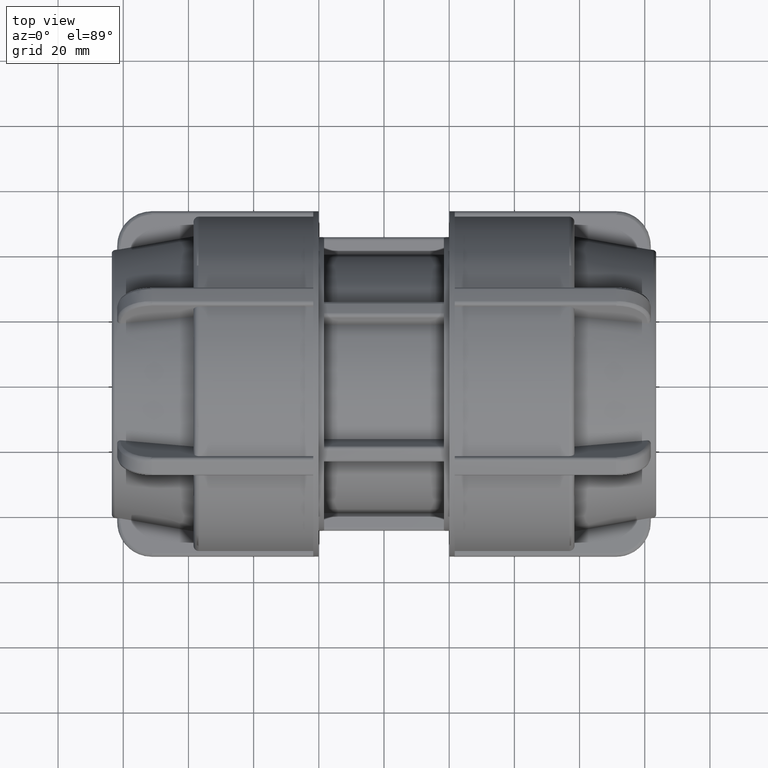
[diagram: clean part render]
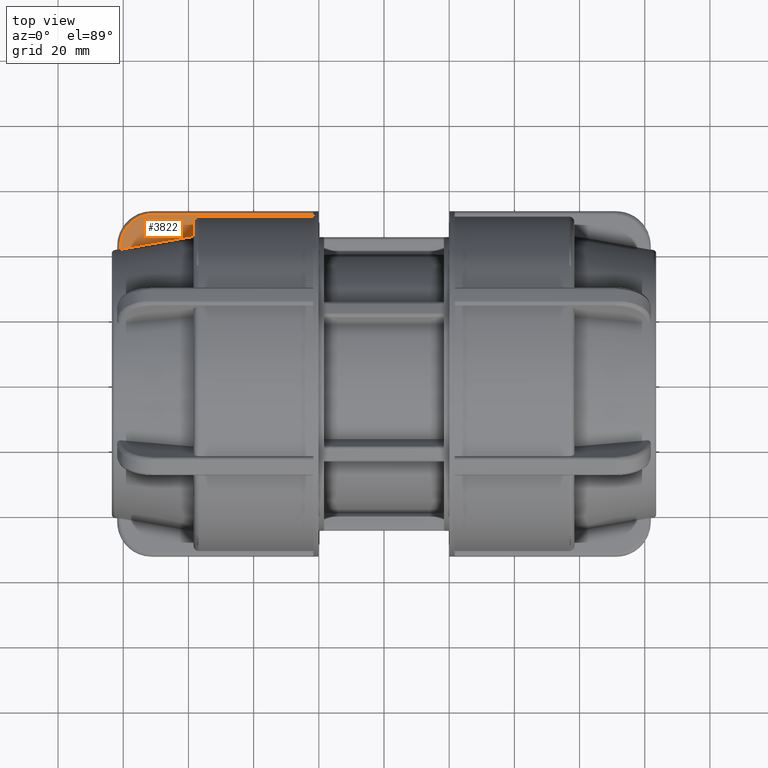
[diagram: same view with one face highlighted and labeled with its STEP entity id]
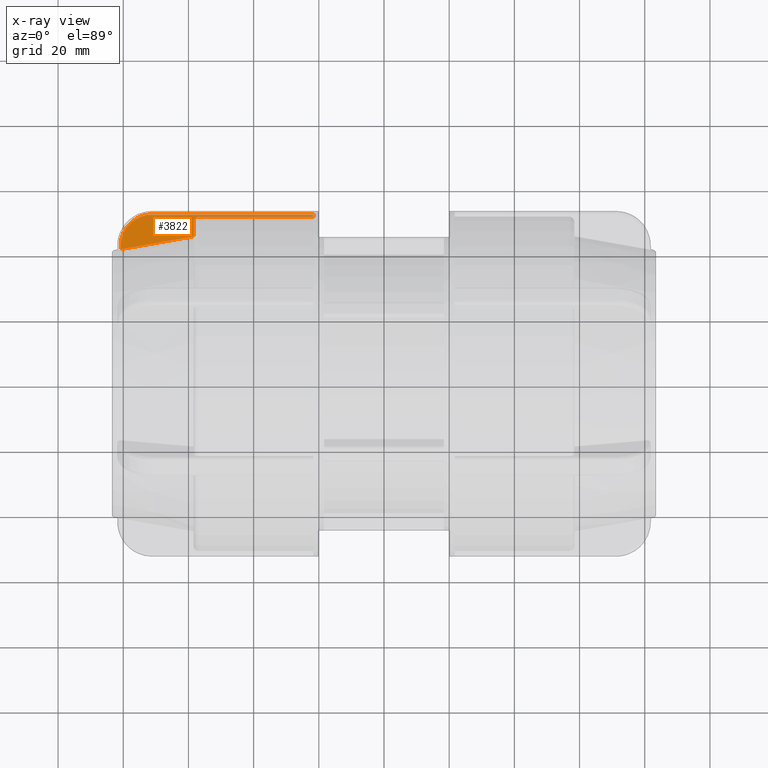
[diagram: x-ray of the same camera — body ghosted, the highlighted face saturated]
A machine part, top view. The second image highlights one B-rep face of the part: STEP entity #3822.
The next image is the same camera in x-ray: the body ghosted, the highlighted face saturated — about 0% of this face is hidden behind the body in this view.
In plain terms, the highlighted planar face has unit normal (0, -0, -1).
Its self-contained STEP definition (entity closure, byte-faithful):
#54=(
BOUNDED_CURVE()
B_SPLINE_CURVE(2,(#6906,#6907,#6908),.UNSPECIFIED.,.F.,.F.)
B_SPLINE_CURVE_WITH_KNOTS((3,3),(0.,2.26158406296181),.UNSPECIFIED.)
CURVE()
GEOMETRIC_REPRESENTATION_ITEM()
RATIONAL_B_SPLINE_CURVE((1.,1.00108662918289,1.00010313540657))
REPRESENTATION_ITEM('')
);
#107=B_SPLINE_CURVE_WITH_KNOTS('',3,(#6701,#6702,#6703,#6704,#6705,#6706,
#6707,#6708,#6709,#6710),.UNSPECIFIED.,.F.,.F.,(4,2,2,2,4),(0.,0.0617922903017216,
0.123644029369258,0.18557029777453,0.247562626783387),.UNSPECIFIED.);
#113=B_SPLINE_CURVE_WITH_KNOTS('',3,(#6878,#6879,#6880,#6881,#6882,#6883),
 .UNSPECIFIED.,.F.,.F.,(4,1,1,4),(0.,0.642536519557135,1.07089419926189,
1.49925187896665),.UNSPECIFIED.);
#268=PLANE('',#4183);
#436=FACE_OUTER_BOUND('',#681,.T.);
#681=EDGE_LOOP('',(#3070,#3071,#3072,#3073,#3074,#3075,#3076,#3077));
#923=LINE('',#6678,#1151);
#925=LINE('',#6735,#1153);
#927=LINE('',#6751,#1155);
#932=LINE('',#6838,#1160);
#933=LINE('',#6899,#1161);
#1151=VECTOR('',#4887,4.38265552667059);
#1153=VECTOR('',#4949,35.07);
#1155=VECTOR('',#4975,0.584527829037809);
#1160=VECTOR('',#5014,49.52);
#1161=VECTOR('',#5019,1.03700516459943);
#1686=VERTEX_POINT('',#6675);
#1687=VERTEX_POINT('',#6677);
#1690=VERTEX_POINT('',#6699);
#1692=VERTEX_POINT('',#6733);
#1694=VERTEX_POINT('',#6749);
#1702=VERTEX_POINT('',#6836);
#1704=VERTEX_POINT('',#6876);
#1706=VERTEX_POINT('',#6886);
#2150=EDGE_CURVE('',#1686,#1687,#923,.T.);
#2164=EDGE_CURVE('',#1690,#1686,#107,.T.);
#2172=EDGE_CURVE('',#1692,#1690,#925,.T.);
#2180=EDGE_CURVE('',#1694,#1692,#927,.T.);
#2194=EDGE_CURVE('',#1702,#1694,#932,.T.);
#2197=EDGE_CURVE('',#1704,#1702,#113,.T.);
#2199=EDGE_CURVE('',#1706,#1704,#933,.T.);
#2203=EDGE_CURVE('',#1687,#1706,#54,.T.);
#3070=ORIENTED_EDGE('',*,*,#2199,.F.);
#3071=ORIENTED_EDGE('',*,*,#2203,.F.);
#3072=ORIENTED_EDGE('',*,*,#2150,.F.);
#3073=ORIENTED_EDGE('',*,*,#2164,.F.);
#3074=ORIENTED_EDGE('',*,*,#2172,.F.);
#3075=ORIENTED_EDGE('',*,*,#2180,.F.);
#3076=ORIENTED_EDGE('',*,*,#2194,.F.);
#3077=ORIENTED_EDGE('',*,*,#2197,.F.);
#3822=ADVANCED_FACE('',(#436),#268,.F.);
#4183=AXIS2_PLACEMENT_3D('',#6905,#5029,#5030);
#4887=DIRECTION('',(3.06161699786838E-16,-1.,1.65853254529359E-16));
#4949=DIRECTION('',(-1.,-3.06161699786838E-16,0.));
#4975=DIRECTION('',(3.06161699786838E-16,-1.,1.65853254529359E-16));
#5014=DIRECTION('',(1.,3.06161699786838E-16,3.09793972729031E-33));
#5019=DIRECTION('',(-3.06161699786838E-16,1.,-1.65853254529359E-16));
#5029=DIRECTION('center_axis',(5.38758540491781E-32,-1.65853254529359E-16,
-1.));
#5030=DIRECTION('ref_axis',(3.5527136788005E-16,-1.,1.77635683940025E-16));
#6675=CARTESIAN_POINT('',(-58.45,49.640156123848,3.14999999999999));
#6677=CARTESIAN_POINT('',(-58.45,45.2575005971774,3.15));
#6678=CARTESIAN_POINT('',(-58.45,49.1366497821464,3.14999999999999));
#6699=CARTESIAN_POINT('',(-56.78,51.3134056558323,3.14999999999999));
#6701=CARTESIAN_POINT('Ctrl Pts',(-56.78,51.3134056558323,3.14999999999999));
#6702=CARTESIAN_POINT('Ctrl Pts',(-56.9859743010058,51.3134056558323,3.14999999999999));
#6703=CARTESIAN_POINT('Ctrl Pts',(-57.2283814630195,51.2651214756472,3.14999999999999));
#6704=CARTESIAN_POINT('Ctrl Pts',(-57.609094446604,51.1072526070537,3.14999999999999));
#6705=CARTESIAN_POINT('Ctrl Pts',(-57.8147156802085,50.9696658696776,3.14999999999999));
#6706=CARTESIAN_POINT('Ctrl Pts',(-58.1062949093139,50.6777500728795,3.14999999999999));
#6707=CARTESIAN_POINT('Ctrl Pts',(-58.2437741301792,50.4716984596174,3.14999999999999));
#6708=CARTESIAN_POINT('Ctrl Pts',(-58.4016935444585,50.0900157807901,3.14999999999999));
#6709=CARTESIAN_POINT('Ctrl Pts',(-58.45,49.8467972205441,3.14999999999999));
#6710=CARTESIAN_POINT('Ctrl Pts',(-58.45,49.640156123848,3.14999999999999));
#6733=CARTESIAN_POINT('',(-21.71,51.3134056558323,3.14999999999999));
#6735=CARTESIAN_POINT('',(-40.08,51.3134056558323,3.14999999999999));
#6749=CARTESIAN_POINT('',(-21.71,51.8979334848701,3.14999999999999));
#6751=CARTESIAN_POINT('',(-21.71,52.1581543487729,3.14999999999999));
#6836=CARTESIAN_POINT('',(-71.23,51.8979334848701,3.14999999999999));
#6838=CARTESIAN_POINT('',(-20.875,51.8979334848701,3.14999999999999));
#6876=CARTESIAN_POINT('',(-80.77,42.3484580592965,3.15));
#6878=CARTESIAN_POINT('Ctrl Pts',(-80.77,42.3484580592965,3.15));
#6879=CARTESIAN_POINT('Ctrl Pts',(-80.77,44.4902464578203,3.15));
#6880=CARTESIAN_POINT('Ctrl Pts',(-79.5209979256506,48.0474893336653,3.14999999999999));
#6881=CARTESIAN_POINT('Ctrl Pts',(-75.508689947125,51.2439131197507,3.14999999999999));
#6882=CARTESIAN_POINT('Ctrl Pts',(-72.6578589323493,51.8979334848701,3.14999999999999));
#6883=CARTESIAN_POINT('Ctrl Pts',(-71.23,51.8979334848701,3.14999999999999));
#6886=CARTESIAN_POINT('',(-80.77,41.3114528946971,3.15));
#6899=CARTESIAN_POINT('',(-80.77,45.3989724419005,3.15));
#6905=CARTESIAN_POINT('Origin',(-20.04,52.9063086975457,3.14999999999999));
#6906=CARTESIAN_POINT('Ctrl Pts',(-58.45,45.2575005971774,3.15));
#6907=CARTESIAN_POINT('Ctrl Pts',(-70.1187027297142,43.1950158037286,3.15));
#6908=CARTESIAN_POINT('Ctrl Pts',(-80.7700000000002,41.3114528946971,3.15));